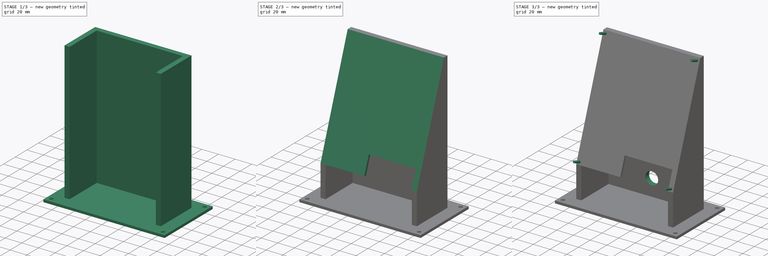
[diagram: build sequence overview — one tinted view per stage of 3, left to right]
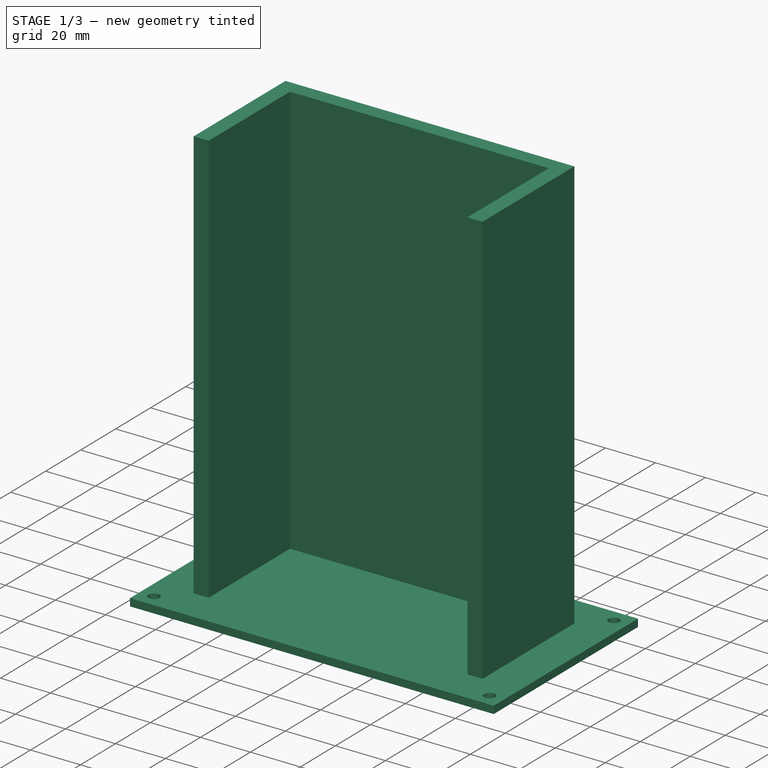
[diagram: stage 1 of 3 — iso view after this stage's code; geometry added in this stage tinted green]
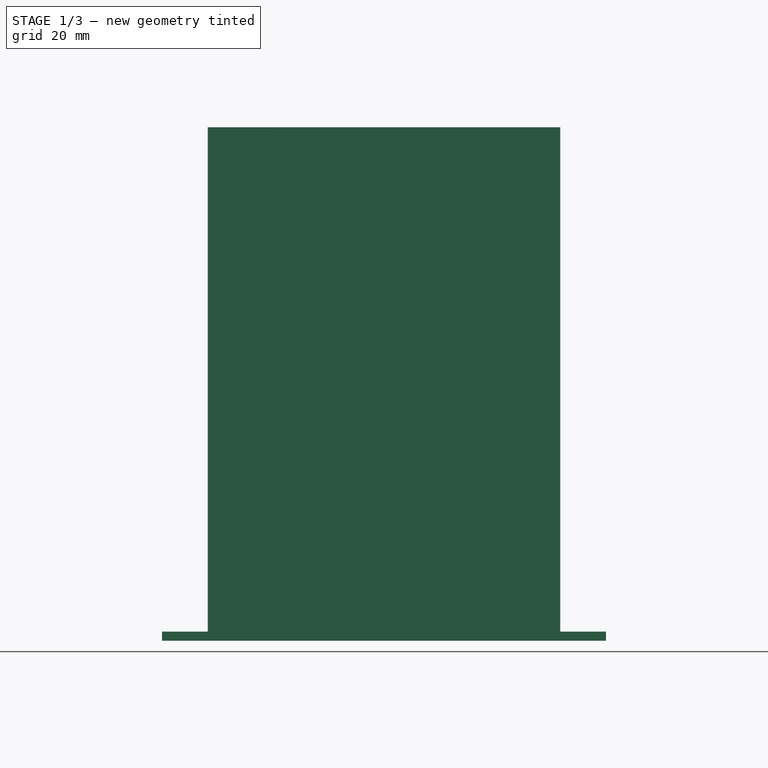
[diagram: stage 1 of 3 — front view after this stage's code; geometry added in this stage tinted green]
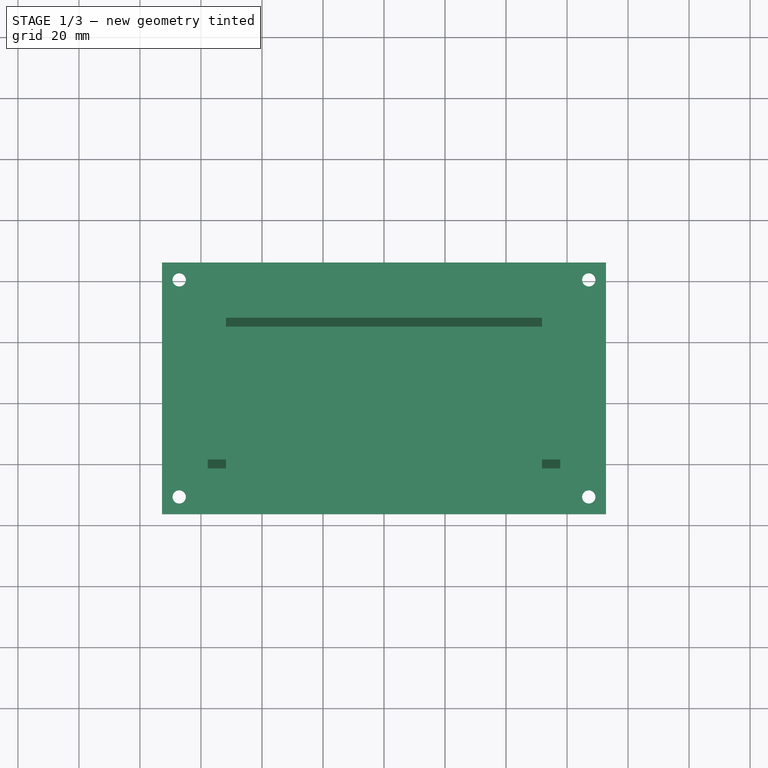
[diagram: stage 1 of 3 — top view after this stage's code; geometry added in this stage tinted green]
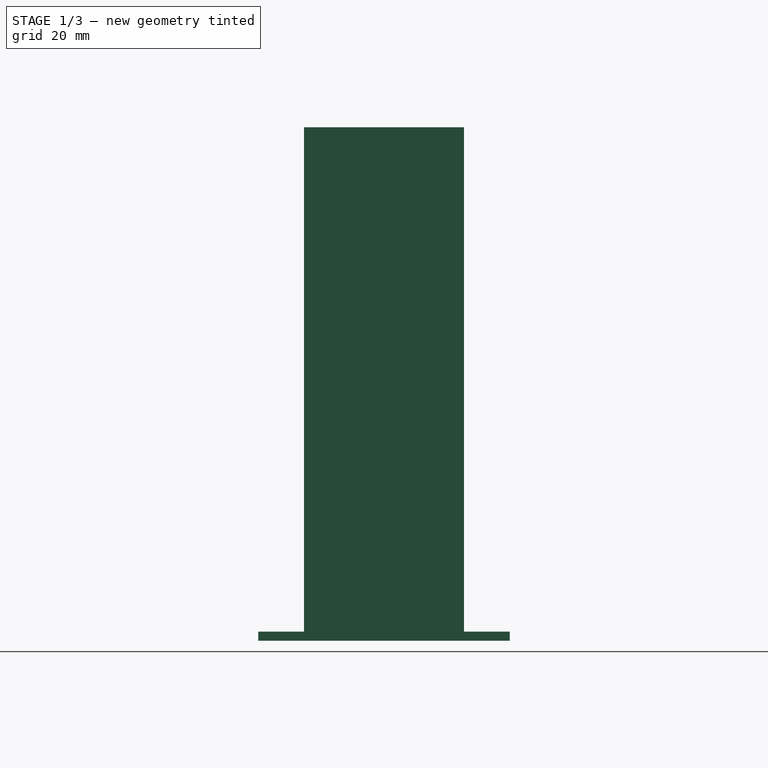
[diagram: stage 1 of 3 — right view after this stage's code; geometry added in this stage tinted green]
FCSTD DOCUMENT  (FreeCAD 0.19R19569 (Git))
Label: Matrix Display Stand Rev D
License: All rights reserved
LicenseURL: http://en.wikipedia.org/wiki/All_rights_reserved
objects: Sketcher::SketchObject×6, PartDesign::Pad×4, PartDesign::Pocket×2, App::MeasureDistance×2, PartDesign::Plane×1, PartDesign::Body×1
note: 20 computed .brp shape members not serialized (recipe doc carries the construction recipe); baked Part::Feature solids carry a one-line shape summary decoded from their .brp

FEATURE [PartDesign::Plane] DatumPlane
  AttachmentOffset = pos=(0,-35,0) rot=(1,0,0;1.22173rad)
  Length = 133.064
  MapMode = 5
  Placement = pos=(0,-35,0) rot=(1,0,0;1.22173rad)
  ResizeMode = 0
  Support = -> [XY_Plane]
  Width = 83.6922
FEATURE [Sketcher::SketchObject] Sketch002  label="Holder Base Profile"
  MapMode = 5
  Placement = pos=(0,-35,0) rot=(1,0,0;1.22173rad)
  Support = -> [DatumPlane]
  sketch-geometry (11):
    g0: LineSegment StartX=-57.785 StartY=175.89 StartZ=0 EndX=57.785 EndY=175.89 EndZ=0
    g1: LineSegment StartX=57.785 StartY=175.89 StartZ=0 EndX=57.785 EndY=40 EndZ=0
    g2: LineSegment StartX=-57.785 StartY=40 StartZ=0 EndX=-57.785 EndY=175.89 EndZ=0
    g3: LineSegment [constr] StartX=0 StartY=0 StartZ=0 EndX=-57.785 EndY=40 EndZ=0
    g4: LineSegment [constr] StartX=57.785 StartY=40 StartZ=0 EndX=0 EndY=0 EndZ=0
    g5: LineSegment [constr] StartX=57.785 StartY=40 StartZ=0 EndX=57.785 EndY=0 EndZ=0
    g6: LineSegment StartX=-5.215 StartY=62 StartZ=0 EndX=51.785 EndY=62 EndZ=0
    g7: LineSegment StartX=51.785 StartY=62 StartZ=0 EndX=51.785 EndY=40 EndZ=0
    g8: LineSegment StartX=-5.215 StartY=40 StartZ=0 EndX=-5.215 EndY=62 EndZ=0
    g9: LineSegment StartX=51.785 StartY=40 StartZ=0 EndX=57.785 EndY=40 EndZ=0
    g10: LineSegment StartX=-57.785 StartY=40 StartZ=0 EndX=-5.215 EndY=40 EndZ=0
  constraints (31):
    c: Coincident(g0,g1)
    c: Coincident(g2,g0)
    c: Horizontal(g0)
    c: Vertical(g1)
    c: Vertical(g2)
    c: DistanceX(g0,g0) = 115.57
    c: DistanceY(g1,g1) = 135.89
    c: Coincident(g3,g-1)
    c: Coincident(g4,g1)
    c: Coincident(g4,g-1)
    c: Equal(g4,g3)
    c: Coincident(g5,g1)
    c: PointOnObject(g5,g-1)
    c: Vertical(g5)
    c: DistanceY(g5,g5) = 40
    c: Coincident(g6,g7)
    c: Coincident(g8,g6)
    c: Horizontal(g6)
    c: Vertical(g7)
    c: Vertical(g8)
    c: DistanceY(g7,g7) = 22
    c: DistanceX(g6,g6) = 57
    c: DistanceX(g7,g1) = 6
    c: Coincident(g9,g7)
    c: Coincident(g9,g1)
    c: Horizontal(g9)
    c: Coincident(g10,g2)
    c: Coincident(g10,g8)
    c: Horizontal(g10)
    c: Coincident(g3,g2)
    c: Equal(g7,g8)
FEATURE [Sketcher::SketchObject] Sketch  label="Legs Profile"
  ExternalGeometry = -> [Sketch002]
  MapMode = 5
  Support = -> [XY_Plane]
  sketch-geometry (9):
    g0: LineSegment StartX=51.785 StartY=-21.3192 StartZ=0 EndX=57.785 EndY=-21.3192 EndZ=0
    g1: LineSegment StartX=57.785 StartY=-21.3192 StartZ=0 EndX=57.785 EndY=31.1579 EndZ=0
    g2: LineSegment StartX=57.785 StartY=31.1579 StartZ=0 EndX=-57.785 EndY=31.1579 EndZ=0
    g3: LineSegment StartX=-57.785 StartY=31.1579 StartZ=0 EndX=-57.785 EndY=-21.3192 EndZ=0
    g4: LineSegment StartX=-57.785 StartY=-21.3192 StartZ=0 EndX=-51.785 EndY=-21.3192 EndZ=0
    g5: LineSegment StartX=-51.785 StartY=-21.3192 StartZ=0 EndX=-51.785 EndY=25.1579 EndZ=0
    g6: LineSegment StartX=-51.785 StartY=25.1579 StartZ=0 EndX=51.785 EndY=25.1579 EndZ=0
    g7: LineSegment StartX=51.785 StartY=25.1579 StartZ=0 EndX=51.785 EndY=-21.3192 EndZ=0
    g8: LineSegment [constr] StartX=-51.785 StartY=25.1579 StartZ=0 EndX=-51.785 EndY=31.1579 EndZ=0
  constraints (24):
    c: Coincident(g0,g1)
    c: Coincident(g2,g1)
    c: Vertical(g3)
    c: Equal(g3,g1)
    c: Coincident(g4,g3)
    c: Horizontal(g4)
    c: Equal(g4,g0)
    c: Coincident(g5,g4)
    c: Vertical(g5)
    c: Coincident(g5,g6)
    c: Horizontal(g6)
    c: Coincident(g6,g7)
    c: Coincident(g7,g0)
    c: Vertical(g7)
    c: Coincident(g2,g3)
    c: Coincident(g8,g5)
    c: PointOnObject(g8,g2)
    c: Vertical(g8)
    c: Equal(g8,g0)
    c: Coincident(g0,g-3)
    c: Coincident(g0,g-6)
    c: Vertical(g1)
    c: Coincident(g-5,g3)
    c: PointOnObject(g5,g-4)
FEATURE [Sketcher::SketchObject] Sketch001  label="Base Profile"
  ExternalGeometry = -> [Sketch]
  MapMode = 5
  Support = -> [XY_Plane]
  sketch-geometry (17):
    g0: LineSegment StartX=-72.785 StartY=46.1579 StartZ=0 EndX=72.785 EndY=46.1579 EndZ=0
    g1: LineSegment StartX=72.785 StartY=46.1579 StartZ=0 EndX=72.785 EndY=-36.3192 EndZ=0
    g2: LineSegment StartX=72.785 StartY=-36.3192 StartZ=0 EndX=-72.785 EndY=-36.3192 EndZ=0
    g3: LineSegment StartX=-72.785 StartY=-36.3192 StartZ=0 EndX=-72.785 EndY=46.1579 EndZ=0
    g4: LineSegment [constr] StartX=-57.785 StartY=31.1579 StartZ=0 EndX=-57.785 EndY=46.1579 EndZ=0
    g5: LineSegment [constr] StartX=57.785 StartY=-21.3192 StartZ=0 EndX=72.785 EndY=-21.3192 EndZ=0
    g6: LineSegment [constr] StartX=57.785 StartY=-21.3192 StartZ=0 EndX=57.785 EndY=-36.3192 EndZ=0
    g7: LineSegment [constr] StartX=-57.785 StartY=-21.3192 StartZ=0 EndX=-72.785 EndY=-21.3192 EndZ=0
    g8: Circle CenterX=-67.1281 CenterY=40.5011 CenterZ=0 NormalX=0 NormalY=0 NormalZ=1 AngleXU=0 Radius=2.185
    g9: Circle CenterX=67.1281 CenterY=40.5011 CenterZ=0 NormalX=0 NormalY=0 NormalZ=1 AngleXU=0 Radius=2.185
    g10: Circle CenterX=67.1281 CenterY=-30.6623 CenterZ=0 NormalX=0 NormalY=0 NormalZ=1 AngleXU=0 Radius=2.185
    g11: Circle CenterX=-67.1281 CenterY=-30.6623 CenterZ=0 NormalX=0 NormalY=0 NormalZ=1 AngleXU=0 Radius=2.185
    g12: LineSegment [constr] StartX=-67.1281 StartY=40.5011 StartZ=0 EndX=67.1281 EndY=40.5011 EndZ=0
    g13: LineSegment [constr] StartX=67.1281 StartY=40.5011 StartZ=0 EndX=67.1281 EndY=-30.6623 EndZ=0
    g14: LineSegment [constr] StartX=67.1281 StartY=-30.6623 StartZ=0 EndX=-67.1281 EndY=-30.6623 EndZ=0
    g15: LineSegment [constr] StartX=-72.785 StartY=46.1579 StartZ=0 EndX=-67.1281 EndY=40.5011 EndZ=0
    g16: LineSegment [constr] StartX=72.785 StartY=-36.3192 StartZ=0 EndX=67.1281 EndY=-30.6623 EndZ=0
  constraints (46):
    c: Coincident(g0,g1)
    c: Coincident(g1,g2)
    c: Coincident(g2,g3)
    c: Coincident(g3,g0)
    c: Horizontal(g0)
    c: Horizontal(g2)
    c: Vertical(g1)
    c: Vertical(g3)
    c: Vertical(g4)
    c: PointOnObject(g4,g0)
    c: PointOnObject(g5,g1)
    c: Horizontal(g5)
    c: Coincident(g6,g5)
    c: PointOnObject(g6,g2)
    c: Vertical(g6)
    c: Equal(g5,g6)
    c: Equal(g6,g4)
    c: DistanceY(g4,g4) = 15
    c: PointOnObject(g7,g3)
    c: Horizontal(g7)
    c: Equal(g4,g7)
    c: Coincident(g4,g-5)
    c: Coincident(g7,g-5)
    c: Coincident(g5,g-3)
    c: Coincident(g12,g8)
    c: Coincident(g12,g9)
    c: Horizontal(g12)
    c: Coincident(g13,g9)
    c: Coincident(g13,g10)
    c: Vertical(g13)
    c: Coincident(g14,g10)
    c: Coincident(g14,g11)
    c: Horizontal(g14)
    c: Equal(g12,g14)
    c: Coincident(g15,g0)
    c: Coincident(g15,g8)
    c: Distance(g15) = 8
    c: Angle(g15,g0) = 0.785398
    c: Equal(g11,g10)
    c: Equal(g10,g9)
    c: Equal(g9,g8)
    c: Diameter(g8) = 4.37
    c: Coincident(g16,g1)
    c: Coincident(g16,g10)
    c: Angle(g16,g2) = 0.785398
    c: Equal(g16,g15)
FEATURE [PartDesign::Pad] Pad  label="Base"
  Length = 3
  Length2 = 100
  Profile = -> Sketch001
  Reversed = true
  Type = 0
FEATURE [PartDesign::Pad] Pad001  label="Legs"
  BaseFeature = -> Pad
  Length = 165.3
  Length2 = 100
  Profile = -> Sketch
  Type = 0
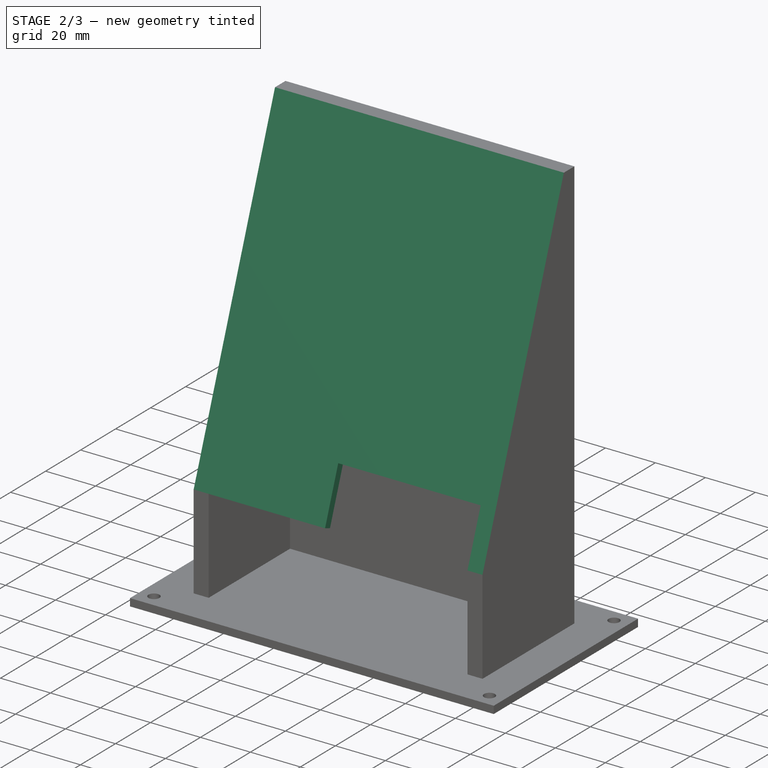
[diagram: stage 2 of 3 — iso view after this stage's code; geometry added in this stage tinted green]
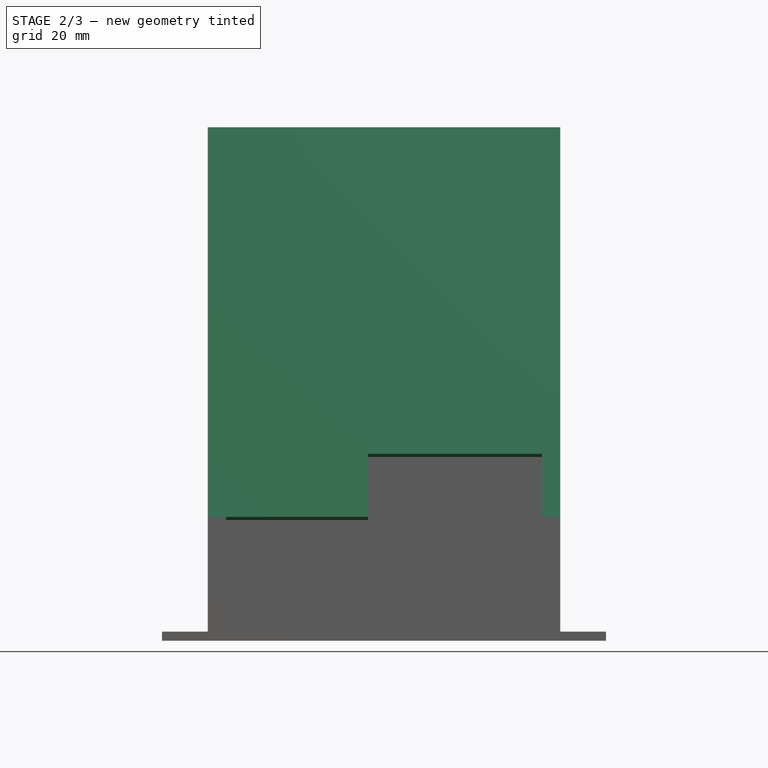
[diagram: stage 2 of 3 — front view after this stage's code; geometry added in this stage tinted green]
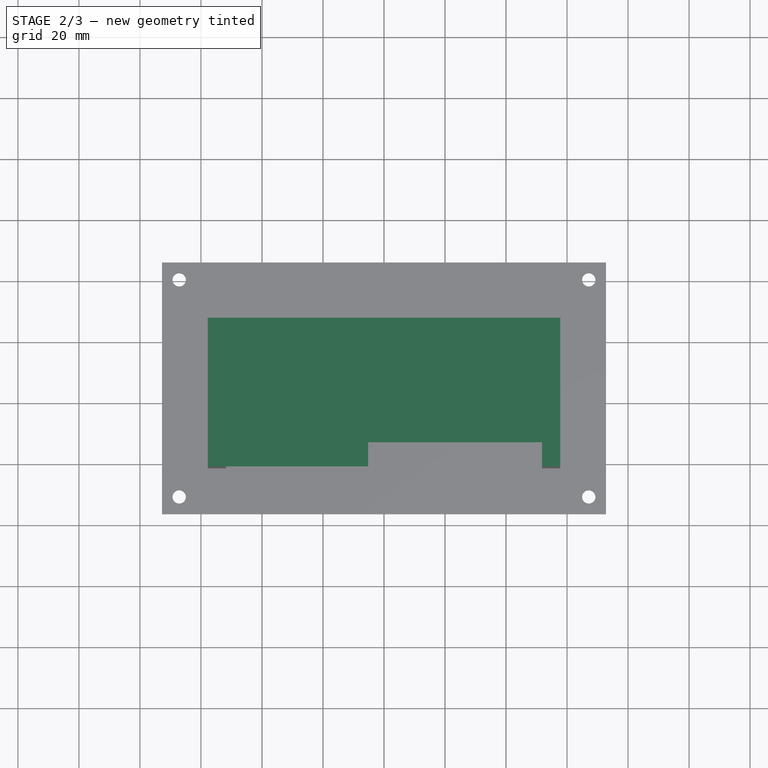
[diagram: stage 2 of 3 — top view after this stage's code; geometry added in this stage tinted green]
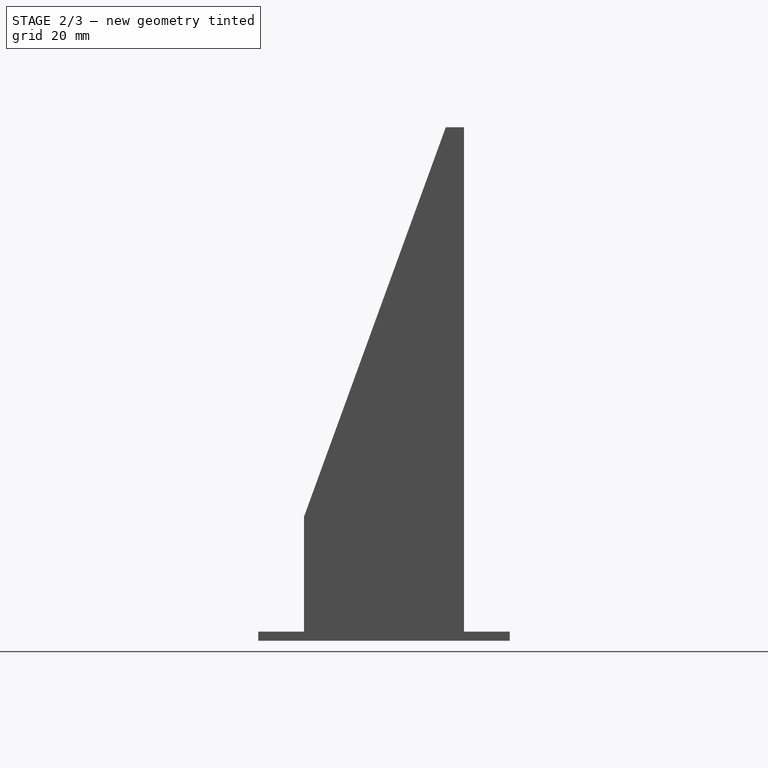
[diagram: stage 2 of 3 — right view after this stage's code; geometry added in this stage tinted green]
FEATURE [Sketcher::SketchObject] Sketch003  label="Pegs Profile"
  ExternalGeometry = -> [Sketch002]
  MapMode = 5
  Placement = pos=(0,-35,0) rot=(1,0,0;1.22173rad)
  Support = -> [DatumPlane]
  sketch-geometry (10):
    g0: Circle CenterX=-54.61 CenterY=172.715 CenterZ=0 NormalX=0 NormalY=0 NormalZ=1 AngleXU=0 Radius=1.4
    g1: Circle CenterX=54.61 CenterY=172.715 CenterZ=0 NormalX=0 NormalY=0 NormalZ=1 AngleXU=0 Radius=1.4
    g2: Circle CenterX=54.61 CenterY=43.175 CenterZ=0 NormalX=0 NormalY=0 NormalZ=1 AngleXU=0 Radius=1.4
    g3: Circle CenterX=-54.61 CenterY=43.175 CenterZ=0 NormalX=0 NormalY=0 NormalZ=1 AngleXU=0 Radius=1.4
    g4: LineSegment [constr] StartX=-54.61 StartY=172.715 StartZ=0 EndX=54.61 EndY=172.715 EndZ=0
    g5: LineSegment [constr] StartX=54.61 StartY=172.715 StartZ=0 EndX=54.61 EndY=43.175 EndZ=0
    g6: LineSegment [constr] StartX=54.61 StartY=43.175 StartZ=0 EndX=-54.61 EndY=43.175 EndZ=0
    g7: LineSegment [constr] StartX=-57.785 StartY=175.89 StartZ=0 EndX=-54.61 EndY=172.715 EndZ=0
    g8: LineSegment [constr] StartX=54.61 StartY=43.175 StartZ=0 EndX=57.785 EndY=40 EndZ=0
    g9: LineSegment [constr] StartX=57.785 StartY=175.89 StartZ=0 EndX=54.61 EndY=172.715 EndZ=0
  constraints (24):
    c: Equal(g0,g1)
    c: Equal(g1,g2)
    c: Equal(g2,g3)
    c: Coincident(g4,g0)
    c: Coincident(g4,g1)
    c: Horizontal(g4)
    c: Coincident(g5,g1)
    c: Coincident(g5,g2)
    c: Vertical(g5)
    c: Coincident(g6,g2)
    c: Coincident(g6,g3)
    c: Horizontal(g6)
    c: Equal(g4,g6)
    c: Diameter(g0) = 2.8
    c: DistanceX(g4,g4) = 109.22
    c: DistanceY(g5,g5) = 129.54
    c: Coincident(g7,g-3)
    c: Coincident(g7,g0)
    c: Coincident(g8,g2)
    c: Coincident(g8,g-4)
    c: Equal(g8,g7)
    c: Coincident(g9,g1)
    c: Equal(g9,g7)
    c: Coincident(g-4,g9)
FEATURE [Sketcher::SketchObject] Sketch004  label="LegChopper Profile"
  MapMode = 5
  Placement = pos=(0,-35,0) rot=(1,0,0;1.22173rad)
  Support = -> [DatumPlane]
  sketch-geometry (4):
    g0: LineSegment StartX=-167.036 StartY=275.659 StartZ=0 EndX=161.784 EndY=275.659 EndZ=0
    g1: LineSegment StartX=161.784 StartY=275.659 StartZ=0 EndX=161.784 EndY=0 EndZ=0
    g2: LineSegment StartX=161.784 StartY=0 StartZ=0 EndX=-167.036 EndY=0 EndZ=0
    g3: LineSegment StartX=-167.036 StartY=0 StartZ=0 EndX=-167.036 EndY=275.659 EndZ=0
  constraints (9):
    c: Coincident(g0,g1)
    c: Coincident(g1,g2)
    c: Coincident(g2,g3)
    c: Coincident(g3,g0)
    c: Horizontal(g0)
    c: Horizontal(g2)
    c: Vertical(g1)
    c: Vertical(g3)
    c: PointOnObject(g1,g-1)
FEATURE [PartDesign::Pocket] Pocket  label="LegChopper"
  BaseFeature = -> Pad001
  Length = 200
  Length2 = 100
  Profile = -> Sketch004
  Reversed = true
  Type = 0
FEATURE [PartDesign::Pad] Pad002  label="Holder"
  BaseFeature = -> Pocket
  Length = 3
  Length2 = 100
  Profile = -> Sketch002
  Refine = true
  Reversed = true
  Type = 0
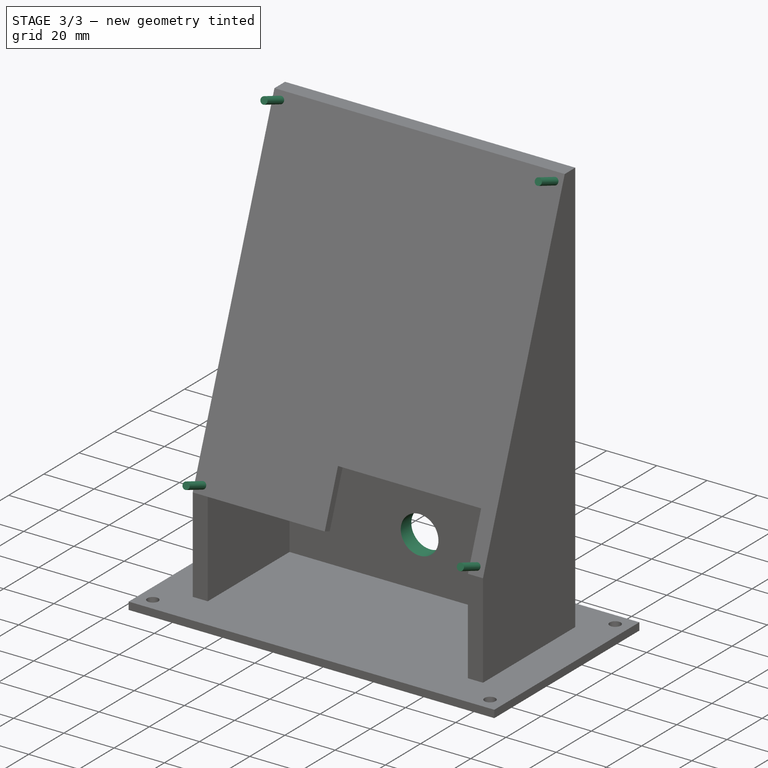
[diagram: stage 3 of 3 — iso view after this stage's code; geometry added in this stage tinted green]
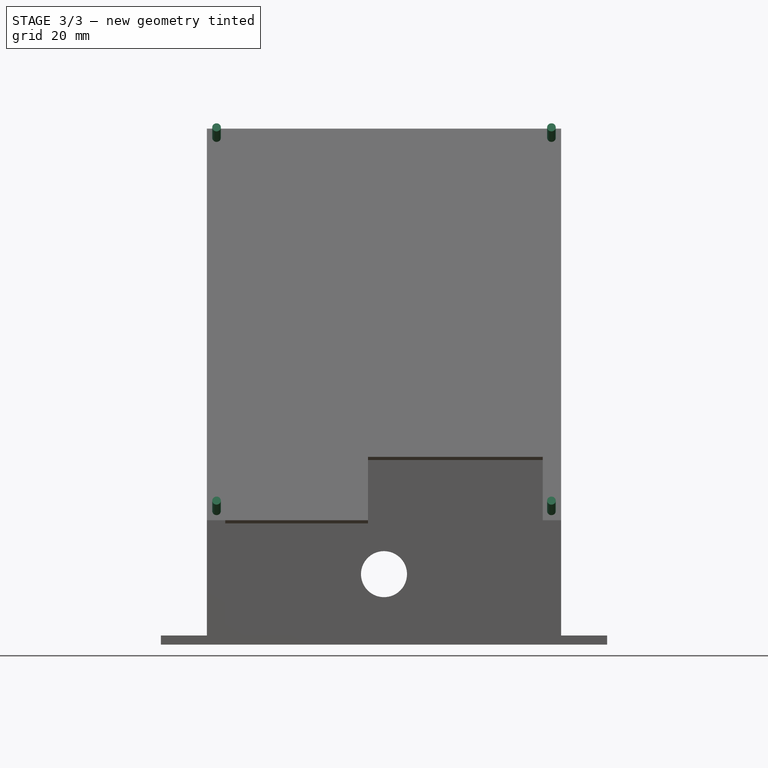
[diagram: stage 3 of 3 — front view after this stage's code; geometry added in this stage tinted green]
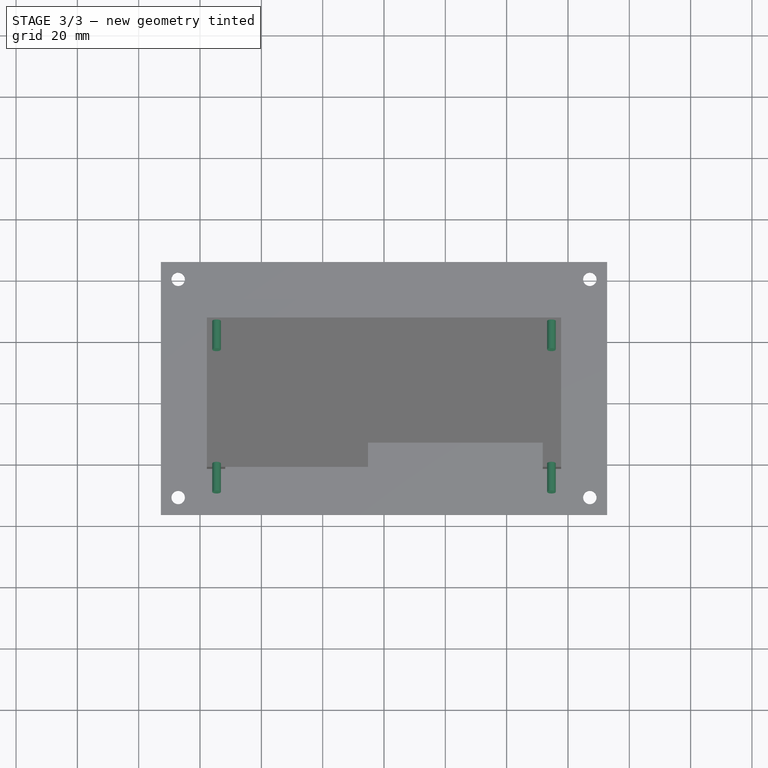
[diagram: stage 3 of 3 — top view after this stage's code; geometry added in this stage tinted green]
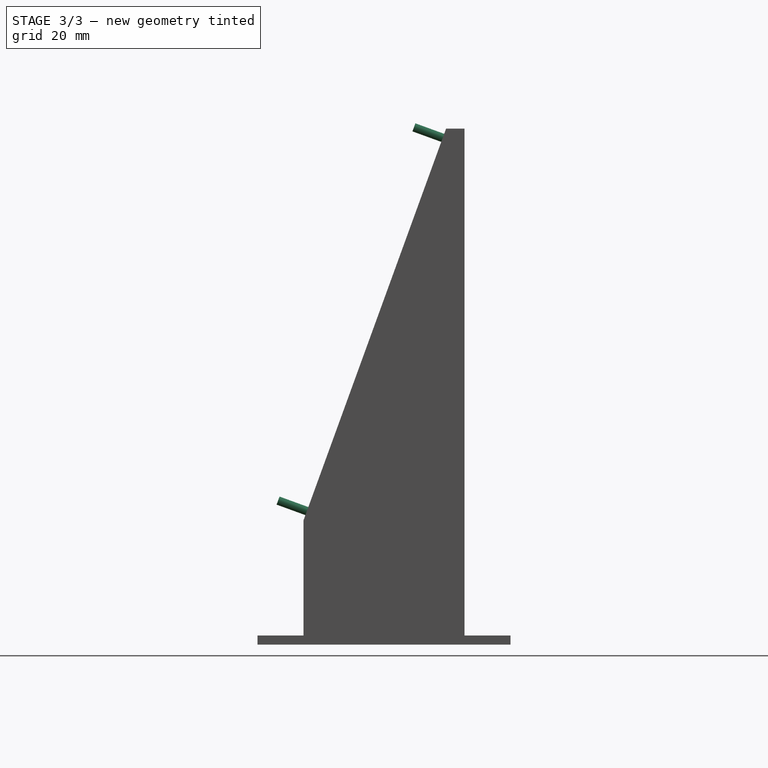
[diagram: stage 3 of 3 — right view after this stage's code; geometry added in this stage tinted green]
FEATURE [PartDesign::Pad] Pad003  label="Pegs"
  BaseFeature = -> Pad002
  Length = 10
  Length2 = 100
  Profile = -> Sketch003
  Type = 0
FEATURE [App::MeasureDistance] Distance  label="Distance: 23.50 mm"
  Distance = 23.4968
  P1 = (-55.6013,-26.4495,23.4923)
  P2 = (-56.0556,-26.5069,-3.6e-15)
FEATURE [App::MeasureDistance] Distance001  label="Distance: 37.64 mm"
  Distance = 37.6364
  P1 = (-53.9201,-21.3192,37.5877)
  P2 = (-56.0395,-21.3192,0.0109921)
FEATURE [Sketcher::SketchObject] Sketch005  label="Cable Hole Profile"
  MapMode = 5
  Placement = pos=(0,0,0) rot=(1,0,0;1.5708rad)
  Support = -> [XZ_Plane]
  sketch-geometry (1):
    g0: Circle CenterX=0 CenterY=20 CenterZ=0 NormalX=0 NormalY=0 NormalZ=1 AngleXU=0 Radius=7.5
  constraints (3):
    c: PointOnObject(g0,g-2)
    c: Diameter(g0) = 15
    c: DistanceY(g-1,g0) = 20
FEATURE [PartDesign::Pocket] Pocket001  label="Cable Hole"
  BaseFeature = -> Pad003
  Length = 5
  Length2 = 100
  Profile = -> Sketch005
  Type = 1
FEATURE [PartDesign::Body] Body
  Group = -> [Sketch,Sketch001,Pad,Pad001,DatumPlane,Sketch002,Sketch003,Sketch004,Pocket,Pad002,Pad003,Sketch005,Pocket001]
  Origin = -> Origin
  Tip = -> Pocket001
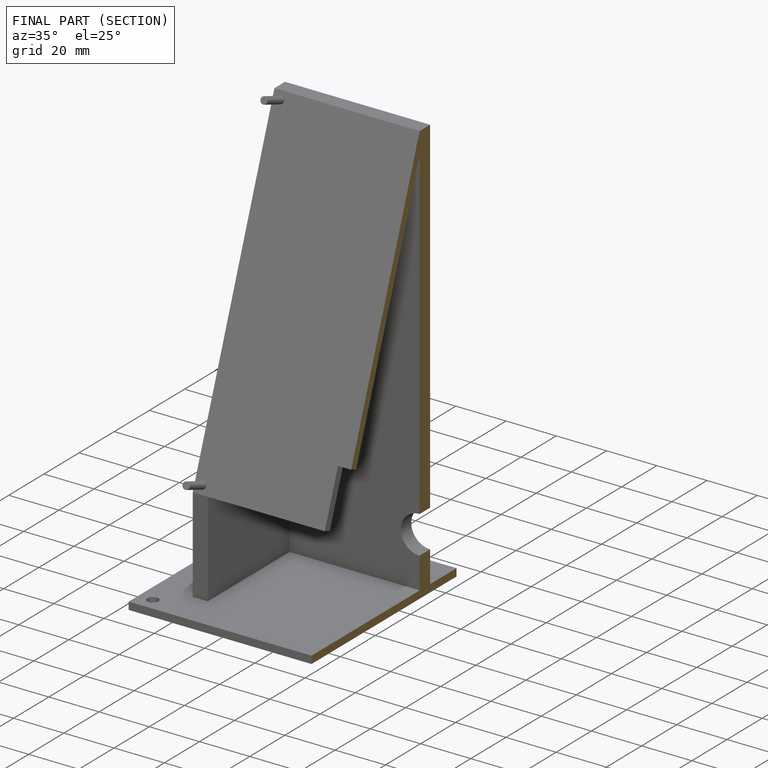
[diagram: finished part — half-section view (interior)]
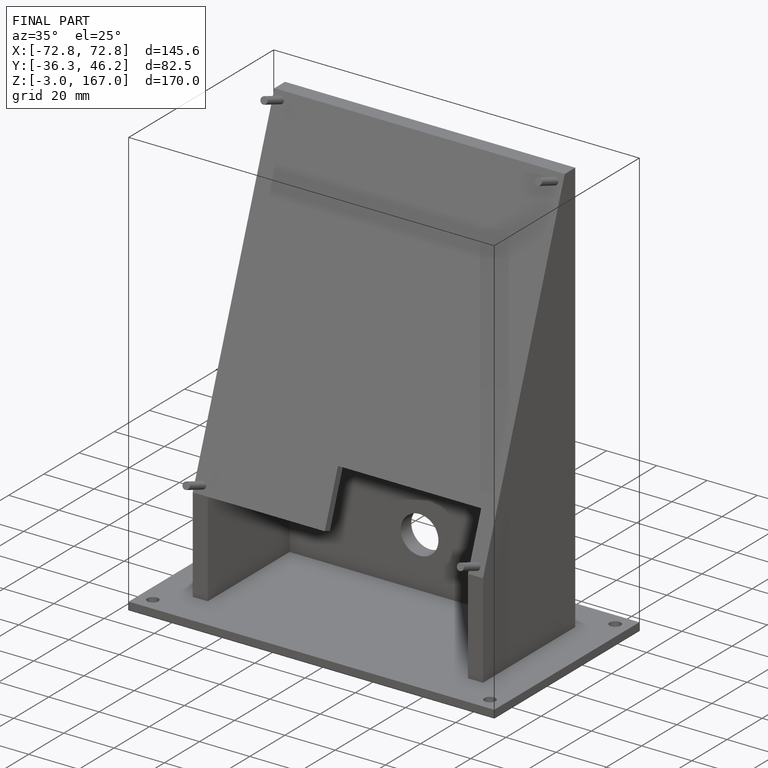
[diagram: finished part — iso view with bounding-box wireframe]
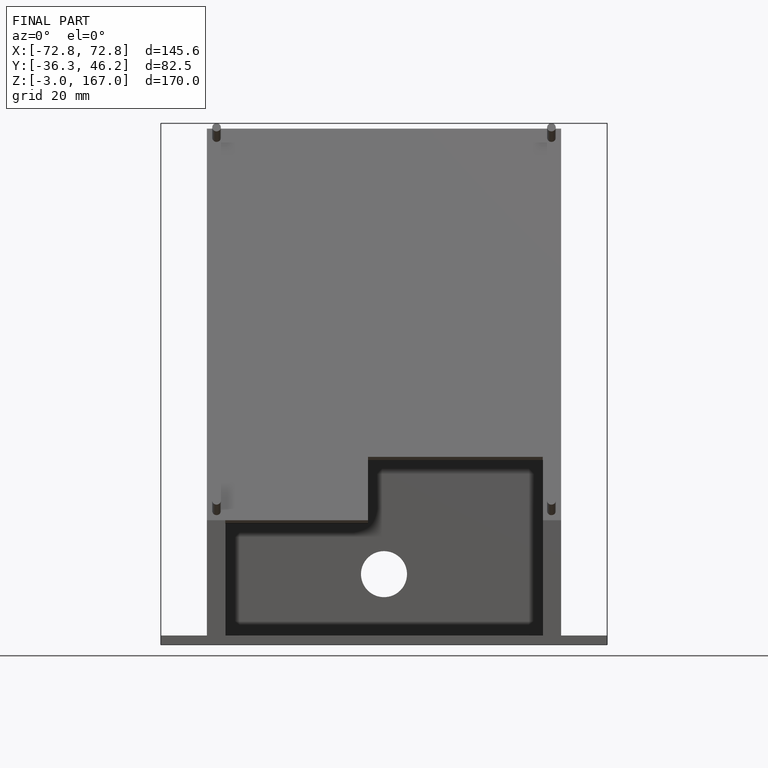
[diagram: finished part — front view with bounding-box wireframe]
